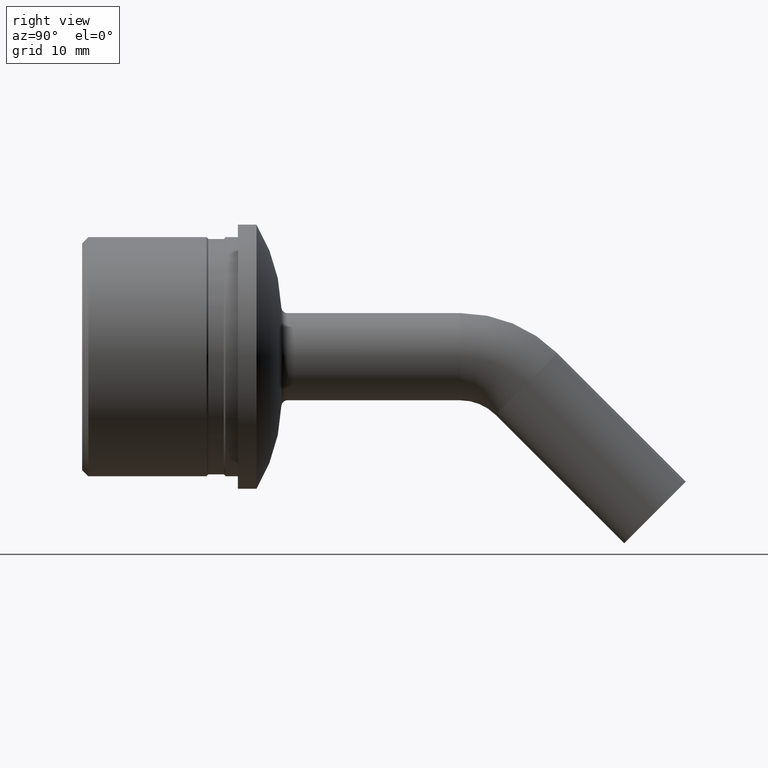
[diagram: clean part render]
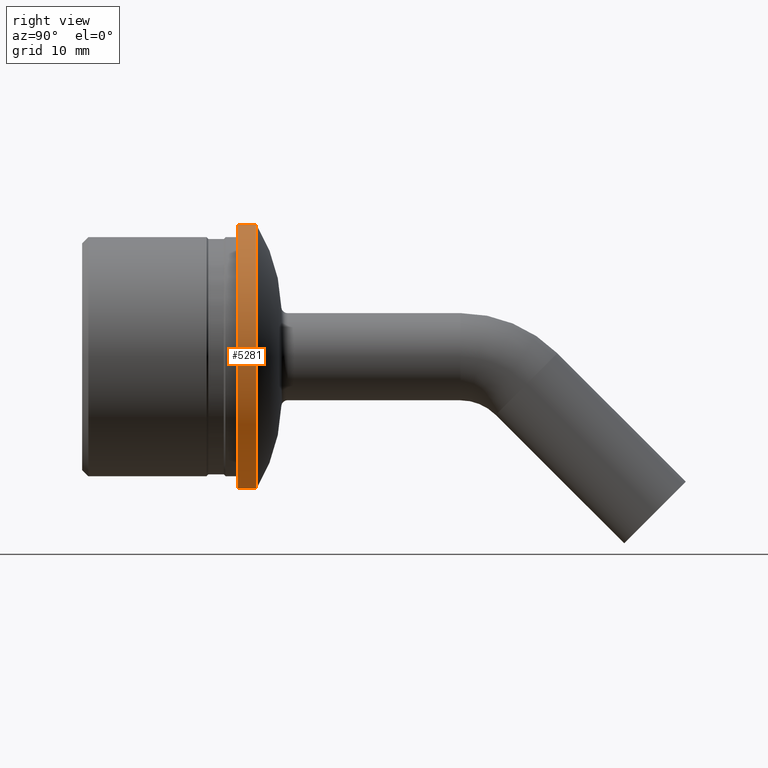
[diagram: same view with one face highlighted and labeled with its STEP entity id]
A machine part, right view. The second image highlights one B-rep face of the part: STEP entity #5281.
In plain terms, the highlighted cylindrical surface (partial cylindrical patch) has radius 21.2 mm, axis along (-0, 1, 0).
Its self-contained STEP definition (entity closure, byte-faithful):
#534 = AXIS2_PLACEMENT_3D ( 'NONE', #14029, #9592, #1588 ) ;
#591 = DIRECTION ( 'NONE',  ( 0.000000000000000000, -1.227398685832646557E-16, 1.000000000000000000 ) ) ;
#966 = ORIENTED_EDGE ( 'NONE', *, *, #1869, .F. ) ;
#1588 = DIRECTION ( 'NONE',  ( 0.000000000000000000, -1.227398685832646557E-16, 1.000000000000000000 ) ) ;
#1869 = EDGE_CURVE ( 'NONE', #9454, #11669, #8401, .T. ) ;
#2081 = DIRECTION ( 'NONE',  ( -0.000000000000000000, 1.000000000000000000, 1.224646799147353207E-16 ) ) ;
#2130 = CARTESIAN_POINT ( 'NONE',  ( 0.000000000000000000, -2.596251214192388770E-15, 21.19999999999999929 ) ) ;
#2871 = DIRECTION ( 'NONE',  ( -0.000000000000000000, 1.000000000000000000, 1.224646799147353207E-16 ) ) ;
#2964 = DIRECTION ( 'NONE',  ( 0.000000000000000000, -1.224646799147353207E-16, 1.000000000000000000 ) ) ;
#2967 = ORIENTED_EDGE ( 'NONE', *, *, #12763, .T. ) ;
#3048 = ORIENTED_EDGE ( 'NONE', *, *, #14082, .F. ) ;
#3442 = AXIS2_PLACEMENT_3D ( 'NONE', #6898, #2871, #2964 ) ;
#3642 = EDGE_CURVE ( 'NONE', #12144, #5026, #9818, .T. ) ;
#4699 = CIRCLE ( 'NONE', #10647, 21.19999999999999929 ) ;
#5026 = VERTEX_POINT ( 'NONE', #9972 ) ;
#5109 = DIRECTION ( 'NONE',  ( -0.000000000000000000, 1.000000000000000000, 1.224646799147353207E-16 ) ) ;
#5281 = ADVANCED_FACE ( 'NONE', ( #11403 ), #6563, .T. ) ;
#5377 = VECTOR ( 'NONE', #2081, 1000.000000000000000 ) ;
#5979 = CIRCLE ( 'NONE', #534, 21.19999999999999929 ) ;
#6563 = CYLINDRICAL_SURFACE ( 'NONE', #3442, 21.19999999999999929 ) ;
#6780 = VECTOR ( 'NONE', #10235, 1000.000000000000000 ) ;
#6898 = CARTESIAN_POINT ( 'NONE',  ( 0.000000000000000000, 0.000000000000000000, 0.000000000000000000 ) ) ;
#7633 = ORIENTED_EDGE ( 'NONE', *, *, #3642, .T. ) ;
#8077 = EDGE_LOOP ( 'NONE', ( #2967, #7633, #3048, #966 ) ) ;
#8401 = LINE ( 'NONE', #2130, #5377 ) ;
#8492 = CARTESIAN_POINT ( 'NONE',  ( 0.000000000000000000, -4.000000000000005329, 21.19999999999999929 ) ) ;
#8543 = CARTESIAN_POINT ( 'NONE',  ( 0.000000000000000000, -7.000000000000002665, -8.572527594031475162E-16 ) ) ;
#8732 = CARTESIAN_POINT ( 'NONE',  ( 2.596251214192388770E-15, -7.000000000000000000, -21.19999999999999929 ) ) ;
#9454 = VERTEX_POINT ( 'NONE', #14359 ) ;
#9592 = DIRECTION ( 'NONE',  ( -0.000000000000000000, 1.000000000000000000, 1.224646799147353207E-16 ) ) ;
#9818 = LINE ( 'NONE', #12414, #6780 ) ;
#9972 = CARTESIAN_POINT ( 'NONE',  ( 2.596251214192388770E-15, -4.000000000000000000, -21.19999999999999929 ) ) ;
#10235 = DIRECTION ( 'NONE',  ( -0.000000000000000000, 1.000000000000000000, 1.224646799147353207E-16 ) ) ;
#10647 = AXIS2_PLACEMENT_3D ( 'NONE', #8543, #5109, #591 ) ;
#11403 = FACE_OUTER_BOUND ( 'NONE', #8077, .T. ) ;
#11669 = VERTEX_POINT ( 'NONE', #8492 ) ;
#12144 = VERTEX_POINT ( 'NONE', #8732 ) ;
#12414 = CARTESIAN_POINT ( 'NONE',  ( 2.596251214192388770E-15, 2.596251214192388770E-15, -21.19999999999999929 ) ) ;
#12763 = EDGE_CURVE ( 'NONE', #9454, #12144, #4699, .T. ) ;
#14029 = CARTESIAN_POINT ( 'NONE',  ( 0.000000000000000000, -4.000000000000002665, -4.898587196589416773E-16 ) ) ;
#14082 = EDGE_CURVE ( 'NONE', #11669, #5026, #5979, .T. ) ;
#14359 = CARTESIAN_POINT ( 'NONE',  ( 0.000000000000000000, -7.000000000000005329, 21.19999999999999929 ) ) ;